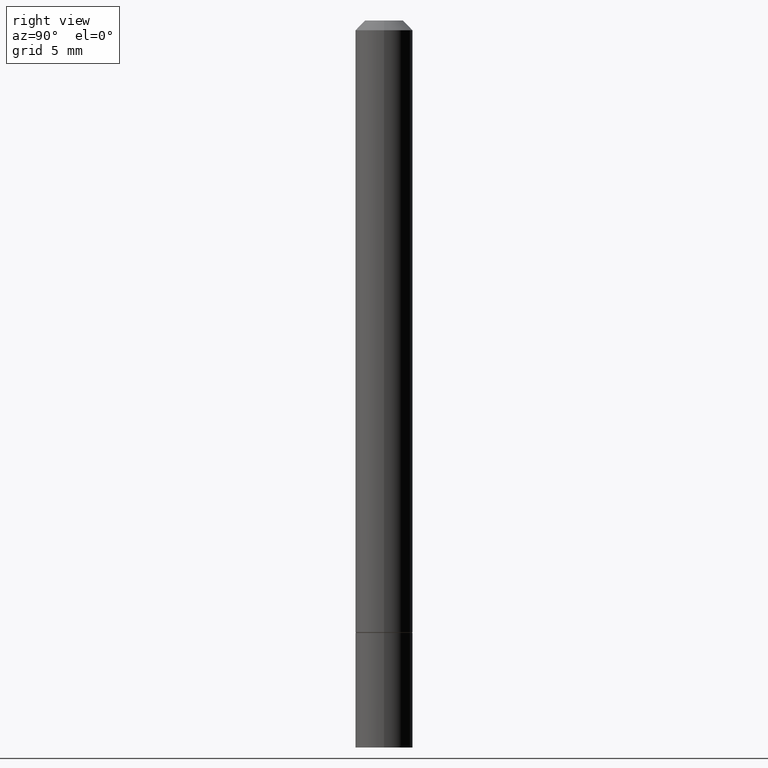
[diagram: clean part render]
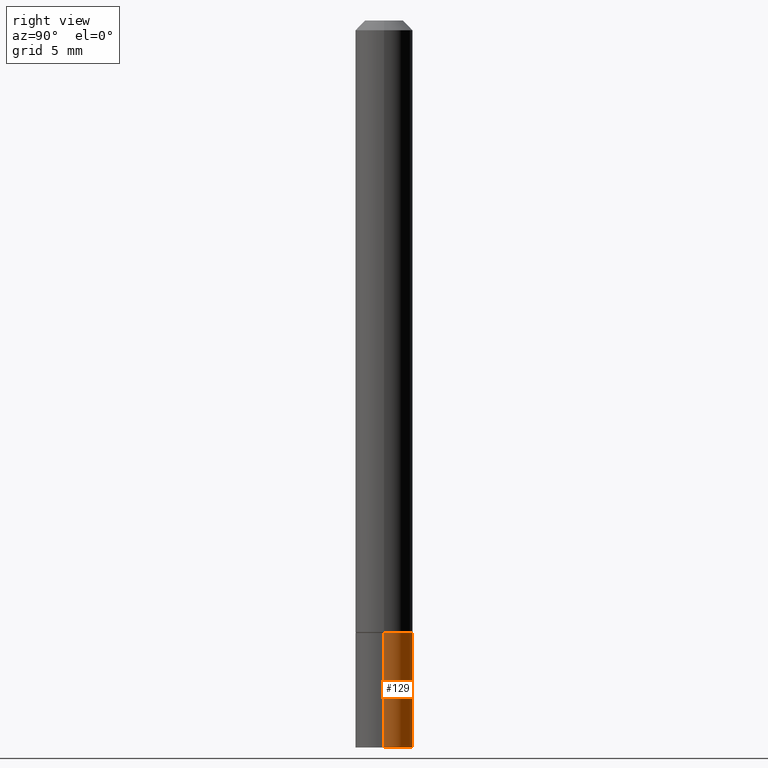
[diagram: same view with one face highlighted and labeled with its STEP entity id]
A machine part, right view. The second image highlights one B-rep face of the part: STEP entity #129.
In plain terms, the highlighted cylindrical surface (edge-blend (fillet) strip) has radius 1.4999 mm, axis along (-0, 0, 1).
Its self-contained STEP definition (entity closure, byte-faithful):
#46 = CARTESIAN_POINT ( 'NONE',  ( 0.05905000000000001914, -4.811261284925853162E-15, -1.259899999999999798 ) ) ;
#48 = CARTESIAN_POINT ( 'NONE',  ( -0.05905000000000001914, -4.391685799459515247E-15, -1.259899999999999798 ) ) ;
#52 = DIRECTION ( 'NONE',  ( -2.445468806185136597E-29, 3.491481338843145583E-15, 1.000000000000000000 ) ) ;
#75 = LINE ( 'NONE', #161, #265 ) ;
#76 = DIRECTION ( 'NONE',  ( -2.445468806185136877E-29, 3.491481338843145188E-15, 1.000000000000000000 ) ) ;
#78 = CARTESIAN_POINT ( 'NONE',  ( 0.05905000000000001914, -5.635949177160603791E-15, -1.496099999999999985 ) ) ;
#79 = VECTOR ( 'NONE', #83, 39.37007874015748143 ) ;
#83 = DIRECTION ( 'NONE',  ( -2.445468806185136877E-29, 3.491481338843145188E-15, 1.000000000000000000 ) ) ;
#85 = DIRECTION ( 'NONE',  ( -2.445468806185136597E-29, 3.491481338843145583E-15, 1.000000000000000000 ) ) ;
#88 = EDGE_LOOP ( 'NONE', ( #169, #138, #133, #292 ) ) ;
#98 = CIRCLE ( 'NONE', #237, 0.05905000000000001914 ) ;
#106 = VERTEX_POINT ( 'NONE', #46 ) ;
#114 = EDGE_CURVE ( 'NONE', #106, #152, #98, .T. ) ;
#129 = ADVANCED_FACE ( 'NONE', ( #325 ), #334, .T. ) ;
#132 = VERTEX_POINT ( 'NONE', #214 ) ;
#133 = ORIENTED_EDGE ( 'NONE', *, *, #114, .F. ) ;
#134 = EDGE_CURVE ( 'NONE', #132, #152, #75, .T. ) ;
#136 = VERTEX_POINT ( 'NONE', #78 ) ;
#138 = ORIENTED_EDGE ( 'NONE', *, *, #134, .T. ) ;
#139 = CARTESIAN_POINT ( 'NONE',  ( 0.05905000000000001914, -4.123439461173741806E-16, 2.879382386107500921E-30 ) ) ;
#152 = VERTEX_POINT ( 'NONE', #48 ) ;
#153 = CARTESIAN_POINT ( 'NONE',  ( 3.081046148912652946E-29, -4.398917338808479031E-15, -1.259899999999999798 ) ) ;
#161 = CARTESIAN_POINT ( 'NONE',  ( -0.05905000000000001914, 4.195754854663392958E-16, -2.904631170795522943E-30 ) ) ;
#162 = AXIS2_PLACEMENT_3D ( 'NONE', #285, #85, #203 ) ;
#169 = ORIENTED_EDGE ( 'NONE', *, *, #278, .T. ) ;
#187 = DIRECTION ( 'NONE',  ( -2.445468806185136597E-29, 3.491481338843145583E-15, 1.000000000000000000 ) ) ;
#194 = CARTESIAN_POINT ( 'NONE',  ( 0.000000000000000000, 0.000000000000000000, 0.000000000000000000 ) ) ;
#203 = DIRECTION ( 'NONE',  ( 1.000000000000000000, -6.982962677686270655E-15, 0.000000000000000000 ) ) ;
#214 = CARTESIAN_POINT ( 'NONE',  ( -0.05905000000000001914, -4.391685799459515247E-15, -1.496099999999999985 ) ) ;
#215 = EDGE_CURVE ( 'NONE', #136, #106, #316, .T. ) ;
#237 = AXIS2_PLACEMENT_3D ( 'NONE', #153, #187, #274 ) ;
#265 = VECTOR ( 'NONE', #76, 39.37007874015748143 ) ;
#274 = DIRECTION ( 'NONE',  ( 1.000000000000000000, -6.982962677686270655E-15, 0.000000000000000000 ) ) ;
#278 = EDGE_CURVE ( 'NONE', #136, #132, #322, .T. ) ;
#285 = CARTESIAN_POINT ( 'NONE',  ( 3.658665880933582389E-29, -5.223605231043229660E-15, -1.496099999999999985 ) ) ;
#292 = ORIENTED_EDGE ( 'NONE', *, *, #215, .F. ) ;
#296 = AXIS2_PLACEMENT_3D ( 'NONE', #194, #52, #329 ) ;
#316 = LINE ( 'NONE', #139, #79 ) ;
#322 = CIRCLE ( 'NONE', #162, 0.05905000000000001914 ) ;
#325 = FACE_OUTER_BOUND ( 'NONE', #88, .T. ) ;
#329 = DIRECTION ( 'NONE',  ( 1.000000000000000000, -6.982962677686266711E-15, 4.876176775795935793E-29 ) ) ;
#334 = CYLINDRICAL_SURFACE ( 'NONE', #296, 0.05905000000000001914 ) ;